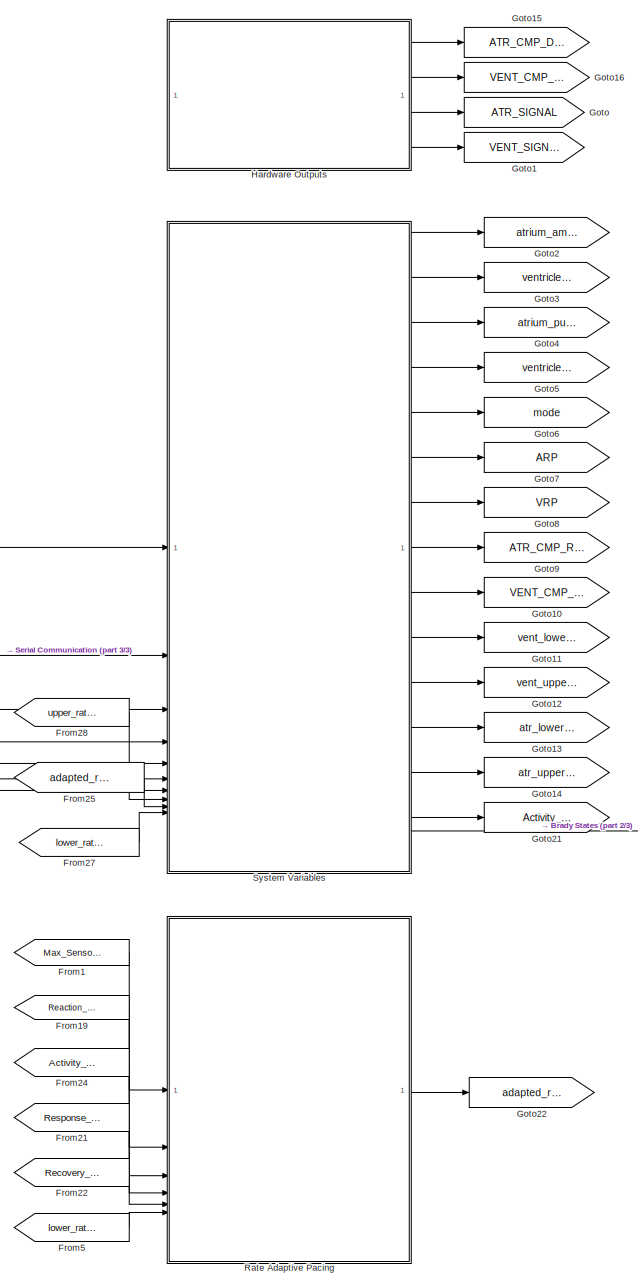
[diagram: root canvas - part 1/3, center side, full height]
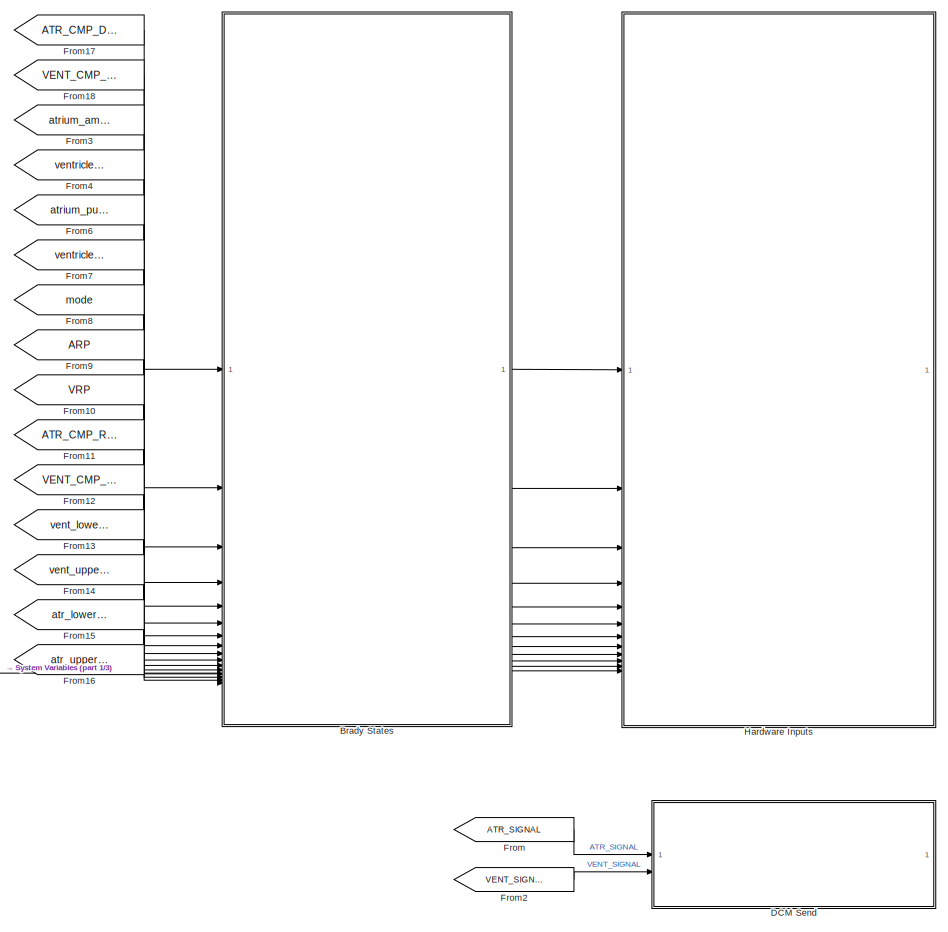
[diagram: root canvas - part 2/3, middle right region]
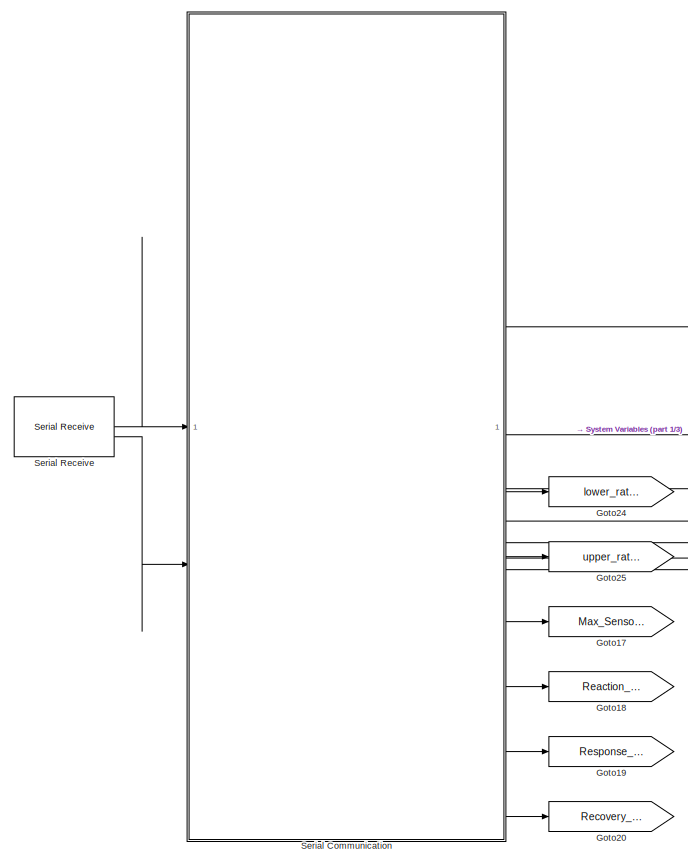
[diagram: root canvas - part 3/3, middle left region]
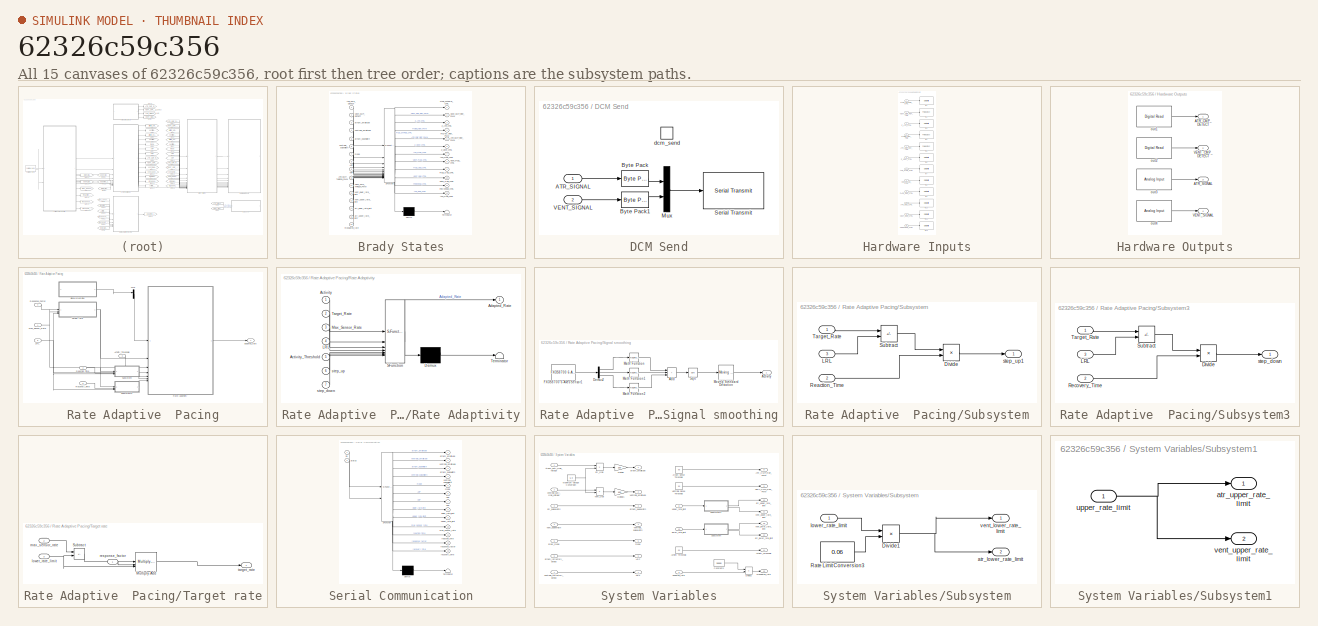
[diagram: thumbnail index - all 15 canvases of the model, root first then tree order]
MODEL slx_62326c59c356
KIND model
CONFIG AbsTol = auto
CONFIG EnableMultiTasking = on
CONFIG FixedStep = 1e-3
CONFIG MaxStep = auto
CONFIG MinStep = auto
CONFIG RelTol = 1e-3
CONFIG SampleTimeConstraint = Unconstrained
CONFIG SolverName = FixedStepAuto
CONFIG StartTime = 0.0
CONFIG StopTime = 10.0
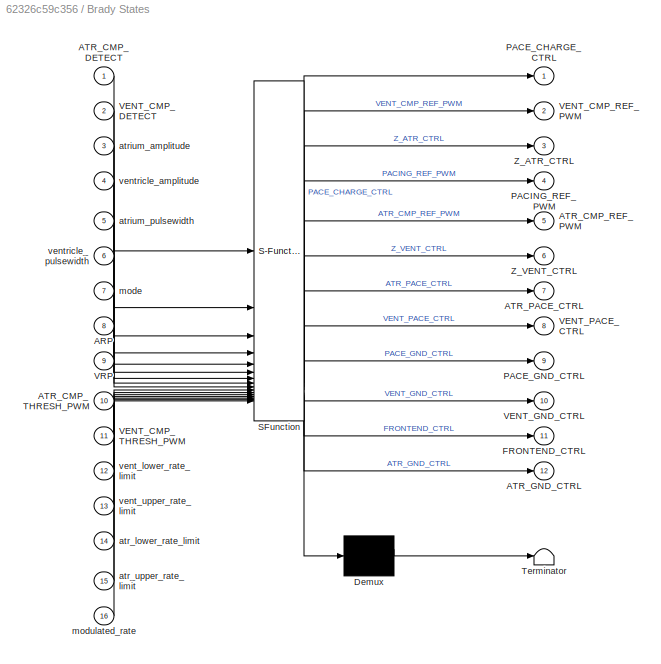
BLOCK [SubSystem] Brady States
  ErrorFcn = Stateflow.Translate.translate
  PermitHierarchicalResolution = ExplicitOnly
  PortSchema = {"entries":[{"content":{"sides":[{"content":{"connectorIds":["In1","In2","In3","In4","In5","In6","In7","In8","In9","In10","In11","In12","In13","In14","In15","In16"]},"type":"ConnectorPlacement.EquallySpacedRectSide","uuid":"d1839c8f-6221-46d4-ade1-365648b0880c"},{"content":{"connectorIds":["Out1","Out2","Out3","Out4","Out5","Out6","Out7","Out8","Out9","Out12","Out10","Out11"],"side":"RIGHT"},"type...<+525ch>
  SFBlockType = Chart
  TreatAsAtomicUnit = on
BLOCK [Demux] Brady States/ Demux 
  Outputs = 1
BLOCK [S-Function] Brady States/ SFunction 
  EnableBusSupport = on
  FunctionName = sf_sfun
  PortCounts = [16 13]
  SFcnIsStateOwnerBlock = off
  SFunctionDeploymentMode = off
  Tag = Stateflow S-Function 3
BLOCK [Terminator] Brady States/ Terminator 
BLOCK [Inport] Brady States/ARP
  Port = 8
BLOCK [Inport] Brady States/ATR_CMP_DETECT
BLOCK [Outport] Brady States/ATR_CMP_REF_PWM
  Port = 5
BLOCK [Inport] Brady States/ATR_CMP_THRESH_PWM
  Port = 10
BLOCK [Outport] Brady States/ATR_GND_CTRL
  Port = 12
BLOCK [Outport] Brady States/ATR_PACE_CTRL
  Port = 7
BLOCK [Outport] Brady States/FRONTEND_CTRL
  Port = 11
BLOCK [Outport] Brady States/PACE_CHARGE_CTRL
BLOCK [Outport] Brady States/PACE_GND_CTRL
  Port = 9
BLOCK [Outport] Brady States/PACING_REF_PWM
  Port = 4
BLOCK [Inport] Brady States/VENT_CMP_DETECT
  Port = 2
BLOCK [Outport] Brady States/VENT_CMP_REF_PWM
  Port = 2
BLOCK [Inport] Brady States/VENT_CMP_THRESH_PWM
  Port = 11
BLOCK [Outport] Brady States/VENT_GND_CTRL
  Port = 10
BLOCK [Outport] Brady States/VENT_PACE_CTRL
  Port = 8
BLOCK [Inport] Brady States/VRP
  Port = 9
BLOCK [Outport] Brady States/Z_ATR_CTRL
  Port = 3
BLOCK [Outport] Brady States/Z_VENT_CTRL
  Port = 6
BLOCK [Inport] Brady States/atr_lower_rate_limit
  Port = 14
BLOCK [Inport] Brady States/atr_upper_rate_limit
  Port = 15
BLOCK [Inport] Brady States/atrium_amplitude
  Port = 3
BLOCK [Inport] Brady States/atrium_pulsewidth
  Port = 5
BLOCK [Inport] Brady States/mode
  Port = 7
BLOCK [Inport] Brady States/modulated_rate
  Port = 16
BLOCK [Inport] Brady States/vent_lower_rate_limit
  Port = 12
BLOCK [Inport] Brady States/vent_upper_rate_limit
  Port = 13
BLOCK [Inport] Brady States/ventricle_amplitude
  Port = 4
BLOCK [Inport] Brady States/ventricle_pulsewidth
  Port = 6
BLOCK [SubSystem] DCM Send
BLOCK [Inport] DCM Send/ATR_SIGNAL
BLOCK [Reference] DCM Send/Byte Pack  REF=etargetslib/Byte Pack
  SourceBlock = etargetslib/Byte Pack
  SourceType = Byte pack
BLOCK [Reference] DCM Send/Byte Pack1  REF=etargetslib/Byte Pack
  SourceBlock = etargetslib/Byte Pack
  SourceType = Byte pack
BLOCK [Mux] DCM Send/Mux
  DisplayOption = bar
  Inputs = 2
BLOCK [Reference] DCM Send/Serial Transmit  REF=frdmk64flib/Serial Transmit
  SourceBlock = frdmk64flib/Serial Transmit
  SourceType = freedomk64f.SCIWrite
BLOCK [Inport] DCM Send/VENT_SIGNAL
  Port = 2
BLOCK [TriggerPort] DCM Send/dcm_send
  FunctionName = dcm_send
  IsSimulinkFunction = on
  StatesWhenEnabling = held
  TriggerType = function-call
  VariantControl = Variant
BLOCK [From] From
  GotoTag = ATR_SIGNAL
BLOCK [From] From1
  GotoTag = Max_Sensor_Rate
BLOCK [From] From10
  GotoTag = VRP
BLOCK [From] From11
  GotoTag = ATR_CMP_REF_PWM
BLOCK [From] From12
  GotoTag = VENT_CMP_REF_PWM
BLOCK [From] From13
  GotoTag = vent_lower_rate_limit
BLOCK [From] From14
  GotoTag = vent_upper_rate_limit
BLOCK [From] From15
  GotoTag = atr_lower_rate_limit
BLOCK [From] From16
  GotoTag = atr_upper_rate_limit
BLOCK [From] From17
  GotoTag = ATR_CMP_DETECT
BLOCK [From] From18
  GotoTag = VENT_CMP_DETECT
BLOCK [From] From19
  GotoTag = Reaction_Time
BLOCK [From] From2
  GotoTag = VENT_SIGNAL
BLOCK [From] From21
  GotoTag = Response_Factor
BLOCK [From] From22
  GotoTag = Recovery_Time
BLOCK [From] From24
  GotoTag = Activity_Threshold
BLOCK [From] From25
  GotoTag = adapted_rate
BLOCK [From] From27
  GotoTag = lower_rate_limit
BLOCK [From] From28
  GotoTag = upper_rate_limit
BLOCK [From] From3
  GotoTag = atrium_amplitude
BLOCK [From] From4
  GotoTag = ventricle_amplitude
BLOCK [From] From5
  GotoTag = lower_rate_limit
BLOCK [From] From6
  GotoTag = atrium_pulsewidth
BLOCK [From] From7
  GotoTag = ventricle_pulsewidth
BLOCK [From] From8
  GotoTag = mode
BLOCK [From] From9
  GotoTag = ARP
BLOCK [Goto] Goto
  GotoTag = ATR_SIGNAL
BLOCK [Goto] Goto1
  GotoTag = VENT_SIGNAL
BLOCK [Goto] Goto10
  GotoTag = VENT_CMP_REF_PWM
BLOCK [Goto] Goto11
  GotoTag = vent_lower_rate_limit
BLOCK [Goto] Goto12
  GotoTag = vent_upper_rate_limit
BLOCK [Goto] Goto13
  GotoTag = atr_lower_rate_limit
BLOCK [Goto] Goto14
  GotoTag = atr_upper_rate_limit
BLOCK [Goto] Goto15
  GotoTag = ATR_CMP_DETECT
BLOCK [Goto] Goto16
  GotoTag = VENT_CMP_DETECT
BLOCK [Goto] Goto17
  GotoTag = Max_Sensor_Rate
BLOCK [Goto] Goto18
  GotoTag = Reaction_Time
BLOCK [Goto] Goto19
  GotoTag = Response_Factor
BLOCK [Goto] Goto2
  GotoTag = atrium_amplitude
BLOCK [Goto] Goto20
  GotoTag = Recovery_Time
BLOCK [Goto] Goto21
  GotoTag = Activity_Threshold
BLOCK [Goto] Goto22
  GotoTag = adapted_rate
BLOCK [Goto] Goto24
  GotoTag = lower_rate_limit
BLOCK [Goto] Goto25
  GotoTag = upper_rate_limit
BLOCK [Goto] Goto3
  GotoTag = ventricle_amplitude
BLOCK [Goto] Goto4
  GotoTag = atrium_pulsewidth
BLOCK [Goto] Goto5
  GotoTag = ventricle_pulsewidth
BLOCK [Goto] Goto6
  GotoTag = mode
BLOCK [Goto] Goto7
  GotoTag = ARP
BLOCK [Goto] Goto8
  GotoTag = VRP
BLOCK [Goto] Goto9
  GotoTag = ATR_CMP_REF_PWM
BLOCK [SubSystem] Hardware Inputs
BLOCK [Inport] Hardware Inputs/ATR_CMP_REF_PWM
  Port = 5
BLOCK [Inport] Hardware Inputs/ATR_GND_CTRL
  Port = 10
BLOCK [Inport] Hardware Inputs/ATR_PACE_CTRL
  Port = 7
BLOCK [Inport] Hardware Inputs/FRONTEND_CTRL
  Port = 12
BLOCK [Inport] Hardware Inputs/PACE_CHARGE_CTRL
BLOCK [Inport] Hardware Inputs/PACE_GND_CTRL
  Port = 9
BLOCK [Inport] Hardware Inputs/PACING_REF_PWM
  Port = 4
BLOCK [Inport] Hardware Inputs/VENT_CMP_REF_PWM
  Port = 2
BLOCK [Inport] Hardware Inputs/VENT_GND_CTRL
  Port = 11
BLOCK [Inport] Hardware Inputs/VENT_PACE_CTRL
  Port = 8
BLOCK [Inport] Hardware Inputs/Z_ATR_CTRL
  Port = 3
BLOCK [Inport] Hardware Inputs/Z_VENT_CTRL
  Port = 6
BLOCK [Reference] Hardware Inputs/in1  REF=frdmk64flib/Digital Write
  SourceBlock = frdmk64flib/Digital Write
  SourceType = freedomk64f.DigitalWrite
BLOCK [Reference] Hardware Inputs/in10  REF=frdmk64flib/Digital Write
  SourceBlock = frdmk64flib/Digital Write
  SourceType = freedomk64f.DigitalWrite
BLOCK [Reference] Hardware Inputs/in11  REF=frdmk64flib/Digital Write
  SourceBlock = frdmk64flib/Digital Write
  SourceType = freedomk64f.DigitalWrite
BLOCK [Reference] Hardware Inputs/in12  REF=frdmk64flib/Digital Write
  SourceBlock = frdmk64flib/Digital Write
  SourceType = freedomk64f.DigitalWrite
BLOCK [Reference] Hardware Inputs/in2  REF=frdmk64flib/PWM Output
  SourceBlock = frdmk64flib/PWM Output
  SourceType = freedomk64f.PWMOutput
BLOCK [Reference] Hardware Inputs/in3  REF=frdmk64flib/Digital Write
  SourceBlock = frdmk64flib/Digital Write
  SourceType = freedomk64f.DigitalWrite
BLOCK [Reference] Hardware Inputs/in4  REF=frdmk64flib/PWM Output
  SourceBlock = frdmk64flib/PWM Output
  SourceType = freedomk64f.PWMOutput
BLOCK [Reference] Hardware Inputs/in5  REF=frdmk64flib/PWM Output
  SourceBlock = frdmk64flib/PWM Output
  SourceType = freedomk64f.PWMOutput
BLOCK [Reference] Hardware Inputs/in6  REF=frdmk64flib/Digital Write
  SourceBlock = frdmk64flib/Digital Write
  SourceType = freedomk64f.DigitalWrite
BLOCK [Reference] Hardware Inputs/in7  REF=frdmk64flib/Digital Write
  SourceBlock = frdmk64flib/Digital Write
  SourceType = freedomk64f.DigitalWrite
BLOCK [Reference] Hardware Inputs/in8  REF=frdmk64flib/Digital Write
  SourceBlock = frdmk64flib/Digital Write
  SourceType = freedomk64f.DigitalWrite
BLOCK [Reference] Hardware Inputs/in9  REF=frdmk64flib/Digital Write
  SourceBlock = frdmk64flib/Digital Write
  SourceType = freedomk64f.DigitalWrite
BLOCK [SubSystem] Hardware Outputs
BLOCK [Outport] Hardware Outputs/ATR_CMP_DETECT
BLOCK [Outport] Hardware Outputs/ATR_SIGNAL
  Port = 3
BLOCK [Outport] Hardware Outputs/VENT_CMP_DETECT
  Port = 2
BLOCK [Outport] Hardware Outputs/VENT_SIGNAL
  Port = 4
BLOCK [Reference] Hardware Outputs/out1  REF=frdmk64flib/Digital Read
  SourceBlock = frdmk64flib/Digital Read
  SourceType = freedomk64f.DigitalRead
BLOCK [Reference] Hardware Outputs/out2  REF=frdmk64flib/Digital Read
  SourceBlock = frdmk64flib/Digital Read
  SourceType = freedomk64f.DigitalRead
BLOCK [Reference] Hardware Outputs/out3  REF=frdmk64flib/Analog Input
  SourceBlock = frdmk64flib/Analog Input
  SourceType = freedomk64f.AnalogInput
BLOCK [Reference] Hardware Outputs/out4  REF=frdmk64flib/Analog Input
  SourceBlock = frdmk64flib/Analog Input
  SourceType = freedomk64f.AnalogInput
BLOCK [SubSystem] Rate Adaptive  Pacing
BLOCK [Inport] Rate Adaptive  Pacing/Activity_Threshold
  Port = 3
BLOCK [Inport] Rate Adaptive  Pacing/LRL
  Port = 6
BLOCK [Inport] Rate Adaptive  Pacing/Max_Sensor_Rate
BLOCK [Mux] Rate Adaptive  Pacing/Mux
  DisplayOption = bar
  Inputs = 1
BLOCK [SubSystem] Rate Adaptive  Pacing/Rate Adaptivity
  ErrorFcn = Stateflow.Translate.translate
  PermitHierarchicalResolution = ExplicitOnly
  SFBlockType = Chart
  TreatAsAtomicUnit = on
BLOCK [Demux] Rate Adaptive  Pacing/Rate Adaptivity/ Demux 
  Outputs = 1
BLOCK [S-Function] Rate Adaptive  Pacing/Rate Adaptivity/ SFunction 
  EnableBusSupport = on
  FunctionName = sf_sfun
  PortCounts = [7 2]
  SFcnIsStateOwnerBlock = off
  SFunctionDeploymentMode = off
  Tag = Stateflow S-Function 7
BLOCK [Terminator] Rate Adaptive  Pacing/Rate Adaptivity/ Terminator 
BLOCK [Inport] Rate Adaptive  Pacing/Rate Adaptivity/Activity
BLOCK [Inport] Rate Adaptive  Pacing/Rate Adaptivity/Activity_Threshold
  Port = 5
BLOCK [Outport] Rate Adaptive  Pacing/Rate Adaptivity/Adapted_Rate
BLOCK [Inport] Rate Adaptive  Pacing/Rate Adaptivity/LRL
  Port = 4
BLOCK [Inport] Rate Adaptive  Pacing/Rate Adaptivity/Max_Sensor_Rate
  Port = 3
BLOCK [Inport] Rate Adaptive  Pacing/Rate Adaptivity/Target_Rate
  Port = 2
BLOCK [Inport] Rate Adaptive  Pacing/Rate Adaptivity/step_down
  Port = 7
BLOCK [Inport] Rate Adaptive  Pacing/Rate Adaptivity/step_up
  Port = 6
BLOCK [Inport] Rate Adaptive  Pacing/Reaction_Time
  Port = 2
BLOCK [Inport] Rate Adaptive  Pacing/Recovery_Time
  Port = 5
BLOCK [Inport] Rate Adaptive  Pacing/Response_Factor
  Port = 4
BLOCK [SubSystem] Rate Adaptive  Pacing/Signal smoothing
BLOCK [Outport] Rate Adaptive  Pacing/Signal smoothing/Activity
  SourceOfInitialOutputValue = Input signal
BLOCK [Sum] Rate Adaptive  Pacing/Signal smoothing/Add
  IconShape = rectangular
  Inputs = +++
BLOCK [Demux] Rate Adaptive  Pacing/Signal smoothing/Demux2
  Outputs = 3
BLOCK [Reference] Rate Adaptive  Pacing/Signal smoothing/FXOS8700 6-Axes Sensor1  REF=frdmk64flib/FXOS8700 6-Axes Sensor
  SourceBlock = frdmk64flib/FXOS8700 6-Axes Sensor
  SourceType = freedomk64f.fxos8700
BLOCK [Math] Rate Adaptive  Pacing/Signal smoothing/Math Function
  Operator = magnitude^2
  OutDataTypeStr = double
  SignedPower = on
BLOCK [Math] Rate Adaptive  Pacing/Signal smoothing/Math Function1
  Operator = magnitude^2
  OutDataTypeStr = double
  SignedPower = on
BLOCK [Math] Rate Adaptive  Pacing/Signal smoothing/Math Function2
  Operator = magnitude^2
  OutDataTypeStr = double
  SignedPower = on
BLOCK [Reference] Rate Adaptive  Pacing/Signal smoothing/Moving Standard Deviation  REF=dspstat3/Moving
Standard
Deviation
  SourceBlock = dspstat3/Moving\nStandard\nDeviation
  SourceType = dsp.simulink.MovingStandardDeviation
BLOCK [Sqrt] Rate Adaptive  Pacing/Signal smoothing/Sqrt
BLOCK [SubSystem] Rate Adaptive  Pacing/Subsystem
BLOCK [Product] Rate Adaptive  Pacing/Subsystem/Divide
  Inputs = */
BLOCK [Inport] Rate Adaptive  Pacing/Subsystem/LRL
  Port = 3
BLOCK [Inport] Rate Adaptive  Pacing/Subsystem/Reaction_Time
  Port = 2
BLOCK [Sum] Rate Adaptive  Pacing/Subsystem/Subtract
  IconShape = rectangular
  Inputs = +-
BLOCK [Inport] Rate Adaptive  Pacing/Subsystem/Target_Rate
BLOCK [Outport] Rate Adaptive  Pacing/Subsystem/step_up1
BLOCK [SubSystem] Rate Adaptive  Pacing/Subsystem3
BLOCK [Product] Rate Adaptive  Pacing/Subsystem3/Divide
  Inputs = */
BLOCK [Inport] Rate Adaptive  Pacing/Subsystem3/LRL
  Port = 3
BLOCK [Inport] Rate Adaptive  Pacing/Subsystem3/Recovery_Time
  Port = 2
BLOCK [Sum] Rate Adaptive  Pacing/Subsystem3/Subtract
  IconShape = rectangular
  Inputs = +-
BLOCK [Inport] Rate Adaptive  Pacing/Subsystem3/Target_Rate
BLOCK [Outport] Rate Adaptive  Pacing/Subsystem3/step_down
BLOCK [SubSystem] Rate Adaptive  Pacing/Target rate
BLOCK [Reference] Rate Adaptive  Pacing/Target rate/Multiply-Add  REF=hdlsllib/HDL Operations/Multiply-Add
  SourceBlock = hdlsllib/HDL Operations/Multiply-Add
  SourceType = Multiply-Add
BLOCK [Sum] Rate Adaptive  Pacing/Target rate/Subtract
  IconShape = rectangular
  Inputs = +-
BLOCK [Inport] Rate Adaptive  Pacing/Target rate/lower_rate_limit
  Port = 3
BLOCK [Inport] Rate Adaptive  Pacing/Target rate/max_sensor_rate
  Port = 2
BLOCK [Inport] Rate Adaptive  Pacing/Target rate/response_factor
BLOCK [Outport] Rate Adaptive  Pacing/Target rate/target_rate
  OutDataTypeStr = uint16
  SourceOfInitialOutputValue = Input signal
BLOCK [Outport] Rate Adaptive  Pacing/adapted_rate
BLOCK [SubSystem] Serial Communication
  ErrorFcn = Stateflow.Translate.translate
  PermitHierarchicalResolution = ExplicitOnly
  SFBlockType = Chart
  TreatAsAtomicUnit = on
BLOCK [Demux] Serial Communication/ Demux 
  Outputs = 1
BLOCK [S-Function] Serial Communication/ SFunction 
  EnableBusSupport = on
  FunctionName = sf_sfun
  PortCounts = [2 14]
  SFcnIsStateOwnerBlock = off
  SFunctionDeploymentMode = off
  Tag = Stateflow S-Function 1
BLOCK [Terminator] Serial Communication/ Terminator 
BLOCK [Outport] Serial Communication/ARP
  Port = 6
BLOCK [Inport] Serial Communication/Rx
BLOCK [Inport] Serial Communication/Status
  Port = 2
BLOCK [Outport] Serial Communication/VRP
  Port = 7
BLOCK [Outport] Serial Communication/atrium_amplitude
BLOCK [Outport] Serial Communication/atrium_pulsewidth
  Port = 3
BLOCK [Outport] Serial Communication/lower_rate_limit
  Port = 8
BLOCK [Outport] Serial Communication/max_sensor_rate
  Port = 10
BLOCK [Outport] Serial Communication/mode
  Port = 5
BLOCK [Outport] Serial Communication/reaction_time
  Port = 11
BLOCK [Outport] Serial Communication/recovery_time
  Port = 13
BLOCK [Outport] Serial Communication/response_factor
  Port = 12
BLOCK [Outport] Serial Communication/upper_rate_limit
  Port = 9
BLOCK [Outport] Serial Communication/ventricle_amplitude
  Port = 2
BLOCK [Outport] Serial Communication/ventricle_pulsewidth
  Port = 4
BLOCK [Reference] Serial Receive  REF=frdmk64flib/Serial Receive
  SourceBlock = frdmk64flib/Serial Receive
  SourceType = freedomk64f.SCIRead
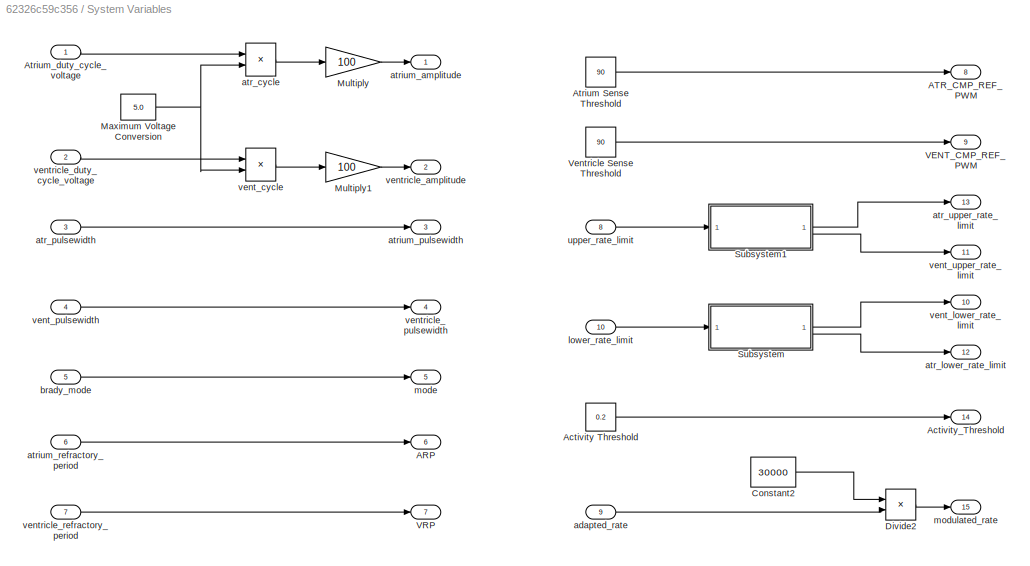
BLOCK [SubSystem] System Variables
BLOCK [Outport] System Variables/ARP
  OutDataTypeStr = double
  Port = 6
BLOCK [Outport] System Variables/ATR_CMP_REF_PWM
  Port = 8
BLOCK [Constant] System Variables/Activity Threshold
  OutDataTypeStr = double
  Value = 0.2
BLOCK [Outport] System Variables/Activity_Threshold
  Port = 14
BLOCK [Constant] System Variables/Atrium Sense Threshold
  Value = 90
BLOCK [Inport] System Variables/Atrium_duty_cycle_voltage
BLOCK [Constant] System Variables/Constant2
  Value = 30000
BLOCK [Product] System Variables/Divide2
  Inputs = */
BLOCK [Constant] System Variables/Maximum Voltage Conversion
  Value = 5.0
BLOCK [Gain] System Variables/Multiply
  Gain = 100
BLOCK [Gain] System Variables/Multiply1
  Gain = 100
BLOCK [SubSystem] System Variables/Subsystem
BLOCK [Product] System Variables/Subsystem/Divide1
  Inputs = */
BLOCK [Constant] System Variables/Subsystem/Rate Limit Conversion3
  Value = 0.06
BLOCK [Outport] System Variables/Subsystem/atr_lower_rate_limit
  Port = 2
BLOCK [Inport] System Variables/Subsystem/lower_rate_limit
BLOCK [Outport] System Variables/Subsystem/vent_lower_rate_limit
BLOCK [SubSystem] System Variables/Subsystem1
BLOCK [Outport] System Variables/Subsystem1/atr_upper_rate_limit
BLOCK [Inport] System Variables/Subsystem1/upper_rate_limit
BLOCK [Outport] System Variables/Subsystem1/vent_upper_rate_limit
  Port = 2
BLOCK [Outport] System Variables/VENT_CMP_REF_PWM
  Port = 9
BLOCK [Outport] System Variables/VRP
  OutDataTypeStr = double
  Port = 7
BLOCK [Constant] System Variables/Ventricle Sense Threshold
  Value = 90
BLOCK [Inport] System Variables/adapted_rate
  Port = 9
BLOCK [Product] System Variables/atr_cycle
  Inputs = */
BLOCK [Outport] System Variables/atr_lower_rate_limit
  Port = 12
BLOCK [Inport] System Variables/atr_pulsewidth
  Port = 3
BLOCK [Outport] System Variables/atr_upper_rate_limit
  Port = 13
BLOCK [Outport] System Variables/atrium_amplitude
BLOCK [Outport] System Variables/atrium_pulsewidth
  OutDataTypeStr = double
  Port = 3
BLOCK [Inport] System Variables/atrium_refractory_period
  Port = 6
BLOCK [Inport] System Variables/brady_mode
  Port = 5
  PortDimensions = 8
BLOCK [Inport] System Variables/lower_rate_limit
  OutDataTypeStr = double
  Port = 10
BLOCK [Outport] System Variables/mode
  Port = 5
  PortDimensions = 8
BLOCK [Outport] System Variables/modulated_rate
  Port = 15
BLOCK [Inport] System Variables/upper_rate_limit
  Port = 8
BLOCK [Product] System Variables/vent_cycle
  Inputs = */
BLOCK [Outport] System Variables/vent_lower_rate_limit
  Port = 10
BLOCK [Inport] System Variables/vent_pulsewidth
  Port = 4
BLOCK [Outport] System Variables/vent_upper_rate_limit
  Port = 11
BLOCK [Outport] System Variables/ventricle_amplitude
  Port = 2
BLOCK [Inport] System Variables/ventricle_duty_cycle_voltage
  Port = 2
BLOCK [Outport] System Variables/ventricle_pulsewidth
  OutDataTypeStr = double
  Port = 4
BLOCK [Inport] System Variables/ventricle_refractory_period
  Port = 7
LINE Brady States:1 -> Hardware Inputs:1
LINE Brady States:10 -> Hardware Inputs:11
LINE Brady States:11 -> Hardware Inputs:12
LINE Brady States:12 -> Hardware Inputs:10
LINE Brady States:2 -> Hardware Inputs:2
LINE Brady States:3 -> Hardware Inputs:3
LINE Brady States:4 -> Hardware Inputs:4
LINE Brady States:5 -> Hardware Inputs:5
LINE Brady States:6 -> Hardware Inputs:6
LINE Brady States:7 -> Hardware Inputs:7
LINE Brady States:8 -> Hardware Inputs:8
LINE Brady States:9 -> Hardware Inputs:9
LINE DCM Send/ATR_SIGNAL:1 -> DCM Send/Byte Pack:1
LINE DCM Send/Byte Pack1:1 -> DCM Send/Mux:2
LINE DCM Send/Byte Pack:1 -> DCM Send/Mux:1
LINE DCM Send/Mux:1 -> DCM Send/Serial Transmit:1
LINE DCM Send/VENT_SIGNAL:1 -> DCM Send/Byte Pack1:1
LINE From10:1 -> Brady States:9
LINE From11:1 -> Brady States:10
LINE From12:1 -> Brady States:11
LINE From13:1 -> Brady States:12
LINE From14:1 -> Brady States:13
LINE From15:1 -> Brady States:14
LINE From16:1 -> Brady States:15
LINE From17:1 -> Brady States:1
LINE From18:1 -> Brady States:2
LINE From19:1 -> Rate Adaptive  Pacing:2
LINE From1:1 -> Rate Adaptive  Pacing:1
LINE From21:1 -> Rate Adaptive  Pacing:4
LINE From22:1 -> Rate Adaptive  Pacing:5
LINE From24:1 -> Rate Adaptive  Pacing:3
LINE From25:1 -> System Variables:9
LINE From27:1 -> System Variables:10
LINE From28:1 -> System Variables:8
LINE From2:1 -> DCM Send:2
LINE From3:1 -> Brady States:3
LINE From4:1 -> Brady States:4
LINE From5:1 -> Rate Adaptive  Pacing:6
LINE From6:1 -> Brady States:5
LINE From7:1 -> Brady States:6
LINE From8:1 -> Brady States:7
LINE From9:1 -> Brady States:8
LINE From:1 -> DCM Send:1
LINE Hardware Inputs/ATR_CMP_REF_PWM:1 -> Hardware Inputs/in5:1
LINE Hardware Inputs/ATR_GND_CTRL:1 -> Hardware Inputs/in10:1
LINE Hardware Inputs/ATR_PACE_CTRL:1 -> Hardware Inputs/in7:1
LINE Hardware Inputs/FRONTEND_CTRL:1 -> Hardware Inputs/in12:1
LINE Hardware Inputs/PACE_CHARGE_CTRL:1 -> Hardware Inputs/in1:1
LINE Hardware Inputs/PACE_GND_CTRL:1 -> Hardware Inputs/in9:1
LINE Hardware Inputs/PACING_REF_PWM:1 -> Hardware Inputs/in4:1
LINE Hardware Inputs/VENT_CMP_REF_PWM:1 -> Hardware Inputs/in2:1
LINE Hardware Inputs/VENT_GND_CTRL:1 -> Hardware Inputs/in11:1
LINE Hardware Inputs/VENT_PACE_CTRL:1 -> Hardware Inputs/in8:1
LINE Hardware Inputs/Z_ATR_CTRL:1 -> Hardware Inputs/in3:1
LINE Hardware Inputs/Z_VENT_CTRL:1 -> Hardware Inputs/in6:1
LINE Hardware Outputs/out1:1 -> Hardware Outputs/ATR_CMP_DETECT:1
LINE Hardware Outputs/out2:1 -> Hardware Outputs/VENT_CMP_DETECT:1
LINE Hardware Outputs/out3:1 -> Hardware Outputs/ATR_SIGNAL:1
LINE Hardware Outputs/out4:1 -> Hardware Outputs/VENT_SIGNAL:1
LINE Hardware Outputs:1 -> Goto15:1
LINE Hardware Outputs:2 -> Goto16:1
LINE Hardware Outputs:3 -> Goto:1
LINE Hardware Outputs:4 -> Goto1:1
LINE Rate Adaptive  Pacing/Activity_Threshold:1 -> Rate Adaptive  Pacing/Rate Adaptivity:5
NET Rate Adaptive  Pacing/LRL:1 -> Rate Adaptive  Pacing/Rate Adaptivity:4, Rate Adaptive  Pacing/Subsystem3:3, Rate Adaptive  Pacing/Subsystem:3, Rate Adaptive  Pacing/Target rate:3
NET Rate Adaptive  Pacing/Max_Sensor_Rate:1 -> Rate Adaptive  Pacing/Rate Adaptivity:3, Rate Adaptive  Pacing/Target rate:2
LINE Rate Adaptive  Pacing/Mux:1 -> Rate Adaptive  Pacing/Rate Adaptivity:1
LINE Rate Adaptive  Pacing/Rate Adaptivity:1 -> Rate Adaptive  Pacing/adapted_rate:1
LINE Rate Adaptive  Pacing/Reaction_Time:1 -> Rate Adaptive  Pacing/Subsystem:2
LINE Rate Adaptive  Pacing/Recovery_Time:1 -> Rate Adaptive  Pacing/Subsystem3:2
LINE Rate Adaptive  Pacing/Response_Factor:1 -> Rate Adaptive  Pacing/Target rate:1
LINE Rate Adaptive  Pacing/Signal smoothing/Add:1 -> Rate Adaptive  Pacing/Signal smoothing/Sqrt:1
LINE Rate Adaptive  Pacing/Signal smoothing/Demux2:1 -> Rate Adaptive  Pacing/Signal smoothing/Math Function:1
LINE Rate Adaptive  Pacing/Signal smoothing/Demux2:2 -> Rate Adaptive  Pacing/Signal smoothing/Math Function1:1
LINE Rate Adaptive  Pacing/Signal smoothing/Demux2:3 -> Rate Adaptive  Pacing/Signal smoothing/Math Function2:1
LINE Rate Adaptive  Pacing/Signal smoothing/FXOS8700 6-Axes Sensor1:1 -> Rate Adaptive  Pacing/Signal smoothing/Demux2:1
LINE Rate Adaptive  Pacing/Signal smoothing/Math Function1:1 -> Rate Adaptive  Pacing/Signal smoothing/Add:2
LINE Rate Adaptive  Pacing/Signal smoothing/Math Function2:1 -> Rate Adaptive  Pacing/Signal smoothing/Add:3
LINE Rate Adaptive  Pacing/Signal smoothing/Math Function:1 -> Rate Adaptive  Pacing/Signal smoothing/Add:1
LINE Rate Adaptive  Pacing/Signal smoothing/Moving Standard Deviation:1 -> Rate Adaptive  Pacing/Signal smoothing/Activity:1
LINE Rate Adaptive  Pacing/Signal smoothing/Sqrt:1 -> Rate Adaptive  Pacing/Signal smoothing/Moving Standard Deviation:1
LINE Rate Adaptive  Pacing/Signal smoothing:1 -> Rate Adaptive  Pacing/Mux:1
LINE Rate Adaptive  Pacing/Subsystem/Divide:1 -> Rate Adaptive  Pacing/Subsystem/step_up1:1
LINE Rate Adaptive  Pacing/Subsystem/LRL:1 -> Rate Adaptive  Pacing/Subsystem/Subtract:2
LINE Rate Adaptive  Pacing/Subsystem/Reaction_Time:1 -> Rate Adaptive  Pacing/Subsystem/Divide:2
LINE Rate Adaptive  Pacing/Subsystem/Subtract:1 -> Rate Adaptive  Pacing/Subsystem/Divide:1
LINE Rate Adaptive  Pacing/Subsystem/Target_Rate:1 -> Rate Adaptive  Pacing/Subsystem/Subtract:1
LINE Rate Adaptive  Pacing/Subsystem3/Divide:1 -> Rate Adaptive  Pacing/Subsystem3/step_down:1
LINE Rate Adaptive  Pacing/Subsystem3/LRL:1 -> Rate Adaptive  Pacing/Subsystem3/Subtract:2
LINE Rate Adaptive  Pacing/Subsystem3/Recovery_Time:1 -> Rate Adaptive  Pacing/Subsystem3/Divide:2
LINE Rate Adaptive  Pacing/Subsystem3/Subtract:1 -> Rate Adaptive  Pacing/Subsystem3/Divide:1
LINE Rate Adaptive  Pacing/Subsystem3/Target_Rate:1 -> Rate Adaptive  Pacing/Subsystem3/Subtract:1
LINE Rate Adaptive  Pacing/Subsystem3:1 -> Rate Adaptive  Pacing/Rate Adaptivity:7
LINE Rate Adaptive  Pacing/Subsystem:1 -> Rate Adaptive  Pacing/Rate Adaptivity:6
LINE Rate Adaptive  Pacing/Target rate/Multiply-Add:1 -> Rate Adaptive  Pacing/Target rate/target_rate:1
LINE Rate Adaptive  Pacing/Target rate/Subtract:1 -> Rate Adaptive  Pacing/Target rate/Multiply-Add:1
NET Rate Adaptive  Pacing/Target rate/lower_rate_limit:1 -> Rate Adaptive  Pacing/Target rate/Multiply-Add:3, Rate Adaptive  Pacing/Target rate/Subtract:2
LINE Rate Adaptive  Pacing/Target rate/max_sensor_rate:1 -> Rate Adaptive  Pacing/Target rate/Subtract:1
LINE Rate Adaptive  Pacing/Target rate/response_factor:1 -> Rate Adaptive  Pacing/Target rate/Multiply-Add:2
NET Rate Adaptive  Pacing/Target rate:1 -> Rate Adaptive  Pacing/Rate Adaptivity:2, Rate Adaptive  Pacing/Subsystem3:1, Rate Adaptive  Pacing/Subsystem:1
LINE Rate Adaptive  Pacing:1 -> Goto22:1
LINE Serial Communication:1 -> System Variables:1
LINE Serial Communication:10 -> Goto17:1
LINE Serial Communication:11 -> Goto18:1
LINE Serial Communication:12 -> Goto19:1
LINE Serial Communication:13 -> Goto20:1
LINE Serial Communication:2 -> System Variables:2
LINE Serial Communication:3 -> System Variables:3
LINE Serial Communication:4 -> System Variables:4
LINE Serial Communication:5 -> System Variables:5
LINE Serial Communication:6 -> System Variables:6
LINE Serial Communication:7 -> System Variables:7
LINE Serial Communication:8 -> Goto24:1
LINE Serial Communication:9 -> Goto25:1
LINE Serial Receive:1 -> Serial Communication:1
LINE Serial Receive:2 -> Serial Communication:2
LINE System Variables/Activity Threshold:1 -> System Variables/Activity_Threshold:1
LINE System Variables/Atrium Sense Threshold:1 -> System Variables/ATR_CMP_REF_PWM:1
LINE System Variables/Atrium_duty_cycle_voltage:1 -> System Variables/atr_cycle:1
LINE System Variables/Constant2:1 -> System Variables/Divide2:1
LINE System Variables/Divide2:1 -> System Variables/modulated_rate:1
NET System Variables/Maximum Voltage Conversion:1 -> System Variables/atr_cycle:2, System Variables/vent_cycle:2
LINE System Variables/Multiply1:1 -> System Variables/ventricle_amplitude:1
LINE System Variables/Multiply:1 -> System Variables/atrium_amplitude:1
NET System Variables/Subsystem/Divide1:1 -> System Variables/Subsystem/atr_lower_rate_limit:1, System Variables/Subsystem/vent_lower_rate_limit:1
LINE System Variables/Subsystem/Rate Limit Conversion3:1 -> System Variables/Subsystem/Divide1:2
LINE System Variables/Subsystem/lower_rate_limit:1 -> System Variables/Subsystem/Divide1:1
NET System Variables/Subsystem1/upper_rate_limit:1 -> System Variables/Subsystem1/atr_upper_rate_limit:1, System Variables/Subsystem1/vent_upper_rate_limit:1
LINE System Variables/Subsystem1:1 -> System Variables/atr_upper_rate_limit:1
LINE System Variables/Subsystem1:2 -> System Variables/vent_upper_rate_limit:1
LINE System Variables/Subsystem:1 -> System Variables/vent_lower_rate_limit:1
LINE System Variables/Subsystem:2 -> System Variables/atr_lower_rate_limit:1
LINE System Variables/Ventricle Sense Threshold:1 -> System Variables/VENT_CMP_REF_PWM:1
LINE System Variables/adapted_rate:1 -> System Variables/Divide2:2
LINE System Variables/atr_cycle:1 -> System Variables/Multiply:1
LINE System Variables/atr_pulsewidth:1 -> System Variables/atrium_pulsewidth:1
LINE System Variables/atrium_refractory_period:1 -> System Variables/ARP:1
LINE System Variables/brady_mode:1 -> System Variables/mode:1
LINE System Variables/lower_rate_limit:1 -> System Variables/Subsystem:1
LINE System Variables/upper_rate_limit:1 -> System Variables/Subsystem1:1
LINE System Variables/vent_cycle:1 -> System Variables/Multiply1:1
LINE System Variables/vent_pulsewidth:1 -> System Variables/ventricle_pulsewidth:1
LINE System Variables/ventricle_duty_cycle_voltage:1 -> System Variables/vent_cycle:1
LINE System Variables/ventricle_refractory_period:1 -> System Variables/VRP:1
LINE System Variables:1 -> Goto2:1
LINE System Variables:10 -> Goto11:1
LINE System Variables:11 -> Goto12:1
LINE System Variables:12 -> Goto13:1
LINE System Variables:13 -> Goto14:1
LINE System Variables:14 -> Goto21:1
LINE System Variables:15 -> Brady States:16
LINE System Variables:2 -> Goto3:1
LINE System Variables:3 -> Goto4:1
LINE System Variables:4 -> Goto5:1
LINE System Variables:5 -> Goto6:1
LINE System Variables:6 -> Goto7:1
LINE System Variables:7 -> Goto8:1
LINE System Variables:8 -> Goto9:1
LINE System Variables:9 -> Goto10:1
note: NET lines group one-source signal fan-out (src -> all destinations, sorted); 1:1 wires keep LINE
CHART Serial Communication states=4 transitions=9
  STATE_LABEL "SET_PARAM\n\nentry:\nmode = typecast(Rx(3:4), 'uint16');\nlower_rate_limit = typecast(Rx(5:6), 'uint16');\nupper_rate_limit = typecast(Rx(7:8), 'uint16');\nventricle_amplitude = typecast(Rx(9:16), 'double');\nventricle_pulsewidth = typecast(Rx(17:18), 'uint16');\nVRP = typecast(Rx(19:20), 'uint16');\natrium_amplitude = typecast(Rx(21:28), 'double');\natrium_pulsewidth = typecast(Rx(29:30), 'uint16');\nARP = ...<+235ch>"
  STATE_LABEL 'Initial\n\nentry:\nmode = 0;\nlower_rate_limit = 60;\nupper_rate_limit = 120;\nreaction_time = 10;\nresponse_factor = 16;\nrecovery_time = 20;\nmax_sensor_rate = 180;\natrium_amplitude = 3.5;\natrium_pulsewidth = 10;\nARP = 200;\nventricle_amplitude = 3.5;\nventricle_pulsewidth = 10;\nVRP = 200;'
  STATE_LABEL 'STANDBY'
  STATE_LABEL 'TRANSITION\nentry:\ndcm_send();'
CHART Brady States states=30 transitions=73
  STATE_LABEL 'AOO'
  STATE_LABEL 'Charging\n\nentry:\n%Charge C22\nATR_PACE_CTRL = false\nVENT_PACE_CTRL = false\nPACING_REF_PWM = atrium_amplitude\nPACE_CHARGE_CTRL = true\n%Discharge C21\nPACE_GND_CTRL = true\nVENT_PACE_CTRL = false\nZ_ATR_CTRL = false\nZ_VENT_CTRL = false\nATR_PACE_CTRL = false\nATR_GND_CTRL = true\nVENT_GND_CTRL = false\n'
  STATE_LABEL 'Discharging\n\nentry:\n%Discharge C22 to charge C21\nPACE_CHARGE_CTRL = false\nPACE_GND_CTRL = true\nVENT_PACE_CTRL = false\nVENT_GND_CTRL = false\nZ_VENT_CTRL = false\nZ_ATR_CTRL = false\nATR_GND_CTRL = false\nATR_PACE_CTRL = true'
  STATE_LABEL 'after((60000/atrium_lower_rate_limit)- atrium_pulsewidth,msec)'
  STATE_LABEL '[mode==0]'
  STATE_LABEL '[mode~=0]'
  STATE_LABEL 'after((atrium_pulsewidth),msec)'
  STATE_LABEL 'Charging\n\nentry:\n%Charge C22\nATR_PACE_CTRL = false\nVENT_PACE_CTRL = false\nPACING_REF_PWM = atrium_amplitude\nPACE_CHARGE_CTRL = true\n%Discharge C21\nPACE_GND_CTRL = true\nVENT_PACE_CTRL = false\nZ_ATR_CTRL = false\nZ_VENT_CTRL = false\nATR_PACE_CTRL = false\nATR_GND_CTRL = true\nVENT_GND_CTRL = false\n'
  STATE_LABEL 'Discharging\n\nentry:\n%Discharge C22 to charge C21\nPACE_CHARGE_CTRL = false\nPACE_GND_CTRL = true\nVENT_PACE_CTRL = false\nVENT_GND_CTRL = false\nZ_VENT_CTRL = false\nZ_ATR_CTRL = false\nATR_GND_CTRL = false\nATR_PACE_CTRL = true'
  STATE_LABEL 'Mode'
  STATE_LABEL 'VOO'
  STATE_LABEL 'Discharging\n\nentry:\n%discharge C22 to charge C21\nPACE_CHARGE_CTRL = false\nPACE_GND_CTRL = true\nATR_PACE_CTRL = false\nATR_GND_CTRL = false\nZ_VENT_CTRL = false\nZ_ATR_CTRL = false\nVENT_GND_CTRL = false\nVENT_PACE_CTRL = true'  <repeated x3 — deduplicated; at blocks: Brady States>
  STATE_LABEL 'Charging\n\nentry:\n%charge C22\nATR_PACE_CTRL = false\nVENT_PACE_CTRL = false\nPACING_REF_PWM = ventricle_amplitude\nPACE_CHARGE_CTRL = true\n%discharge C21 into ventricle ground\nPACE_GND_CTRL = true\nVENT_PACE_CTRL = false\nZ_ATR_CTRL = false\nZ_VENT_CTRL = false\nATR_PACE_CTRL = false\nATR_GND_CTRL = false\nVENT_GND_CTRL = true'
  STATE_LABEL 'after((ventricle_pulsewidth),msec)'
  STATE_LABEL '[mode==1]'
  STATE_LABEL 'after((60000/ventricle_lower_rate_limit)-ventricle_pulsewidth,msec)'
  STATE_LABEL '[mode~=1]'
  STATE_LABEL 'Charging\n\nentry:\n%charge C22\nATR_PACE_CTRL = false\nVENT_PACE_CTRL = false\nPACING_REF_PWM = ventricle_amplitude\nPACE_CHARGE_CTRL = true\n%discharge C21 into ventricle ground\nPACE_GND_CTRL = true\nVENT_PACE_CTRL = false\nZ_ATR_CTRL = false\nZ_VENT_CTRL = false\nATR_PACE_CTRL = false\nATR_GND_CTRL = false\nVENT_GND_CTRL = true'
  STATE_LABEL 'after((ventricle_pulsewidth),msec)'
  STATE_LABEL 'AAI'
  STATE_LABEL 'Charging\n\nentry:\n%Turn on sensing\nFRONTEND_CTRL = true\nATR_CMP_REF_PWM = ATR_CMP_THRESH_PWM\n%Charging capacitor C22\nATR_PACE_CTRL = false\nVENT_PACE_CTRL = false\nPACING_REF_PWM = atrium_amplitude\nPACE_CHARGE_CTRL = true\n%Discharge C21 into Atrium ground\nPACE_GND_CTRL = true\nVENT_PACE_CTRL = false\nZ_ATR_CTRL = false\nZ_VENT_CTRL = false\nATR_PACE_CTRL = false\nATR_GND_CTRL = true\nVENT_GND_CTRL = false\n'
  STATE_LABEL 'Discharging\n\nentry:\n%discharge C22 to charge C21\nPACE_CHARGE_CTRL = false\nPACE_GND_CTRL = true\nVENT_PACE_CTRL = false\nVENT_GND_CTRL = false\nZ_VENT_CTRL = false\nZ_ATR_CTRL = false\nATR_GND_CTRL = false\nATR_PACE_CTRL = true'
  STATE_LABEL 'Transition\n%Check for sense outside atrium refractory period\n'
  STATE_LABEL 'after(atrium_pulsewidth, msec)'
  STATE_LABEL '[mode==2]'
  STATE_LABEL '[mode~=2]'
  STATE_LABEL 'after(ARP, msec)'
  STATE_LABEL 'after((60000/atrium_lower_rate_limit) - atrium_pulsewidth - ARP,msec)'
  STATE_LABEL '[ATR_CMP_DETECT == true]'
  STATE_LABEL 'Charging\n\nentry:\n%Turn on sensing\nFRONTEND_CTRL = true\nATR_CMP_REF_PWM = ATR_CMP_THRESH_PWM\n%Charging capacitor C22\nATR_PACE_CTRL = false\nVENT_PACE_CTRL = false\nPACING_REF_PWM = atrium_amplitude\nPACE_CHARGE_CTRL = true\n%Discharge C21 into Atrium ground\nPACE_GND_CTRL = true\nVENT_PACE_CTRL = false\nZ_ATR_CTRL = false\nZ_VENT_CTRL = false\nATR_PACE_CTRL = false\nATR_GND_CTRL = true\nVENT_GND_CTRL = false\n'
  STATE_LABEL 'Discharging\n\nentry:\n%discharge C22 to charge C21\nPACE_CHARGE_CTRL = false\nPACE_GND_CTRL = true\nVENT_PACE_CTRL = false\nVENT_GND_CTRL = false\nZ_VENT_CTRL = false\nZ_ATR_CTRL = false\nATR_GND_CTRL = false\nATR_PACE_CTRL = true'
  STATE_LABEL 'Transition\n%Check for sense outside atrium refractory period\n'
  STATE_LABEL 'VVI'
  STATE_LABEL 'Charging\n\nentry:\n%Turn sensing on\nFRONTEND_CTRL = true\nVENT_CMP_REF_PWM = VENT_CMP_THRESH_PWM\n%Charging C22\nATR_PACE_CTRL = false\nVENT_PACE_CTRL = false\nPACING_REF_PWM = ventricle_amplitude\nPACE_CHARGE_CTRL = true\n%Charge release of capacitor C21 into Ventricle ground\nPACE_GND_CTRL = true\nVENT_PACE_CTRL = false\nZ_ATR_CTRL = false\nZ_VENT_CTRL = false\nATR_PACE_CTRL = false\nATR_GND_CTRL = false\nVENT_...<+15ch>'
  STATE_LABEL 'Transition\n%Check for sense outside atrium refractory period\n'
  STATE_LABEL 'after(ventricle_pulsewidth, msec)'
  STATE_LABEL '[mode==3]'
  STATE_LABEL '[mode~=3]'
CHART Rate Adaptive  Pacing/Rate Adaptivity states=9 transitions=15
  STATE_LABEL 'wait'
  STATE_LABEL 'Step_up\nentry:\nAdapted_Rate = stepu(Adapted_Rate, step_up);'
  STATE_LABEL 'Assign\nentry:\nAdapted_Rate = Target_Rate;'
  STATE_LABEL 'Start1\nentry:\nAdapted_Rate = LRL;\n'
  STATE_LABEL 'Step_down\nentry:\nAdapted_Rate = stepd(Adapted_Rate, step_up);\n'
  STATE_LABEL 'step_down2\nentry:\nAdapted_Rate = stepd(Adapted_Rate, step_down);\n'
  STATE_LABEL 'x = stepd(a,b)'
  STATE_LABEL 'SCRIPT:\nfunction x = stepd(a,b)\nx = a - b;\nend\n \n'
  STATE_LABEL 'x = stepu(a,b)'
  STATE_LABEL 'SCRIPT:\nfunction x = stepu(a,b)\nx = a + b;\nend\n \n \n'
  STATE_LABEL 'wait2'
CHART  states=0 transitions=0
CHART  states=0 transitions=0
CHART  states=0 transitions=0
